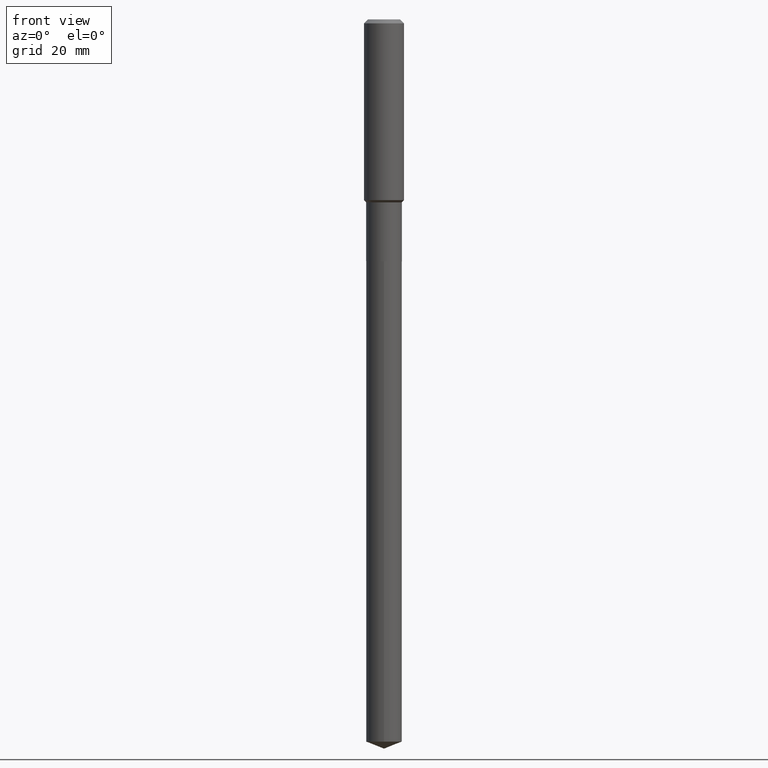
[diagram: clean part render]
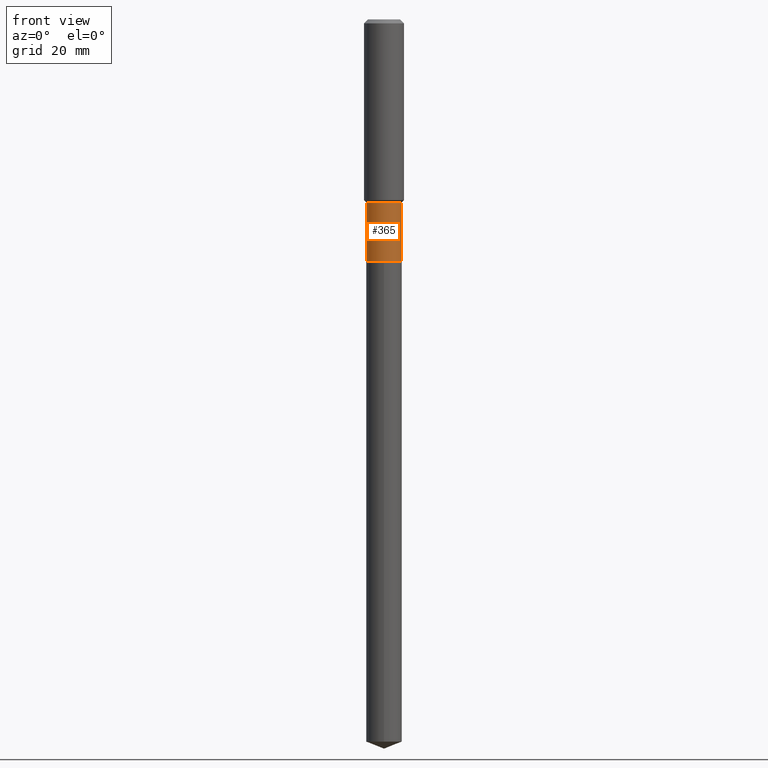
[diagram: same view with one face highlighted and labeled with its STEP entity id]
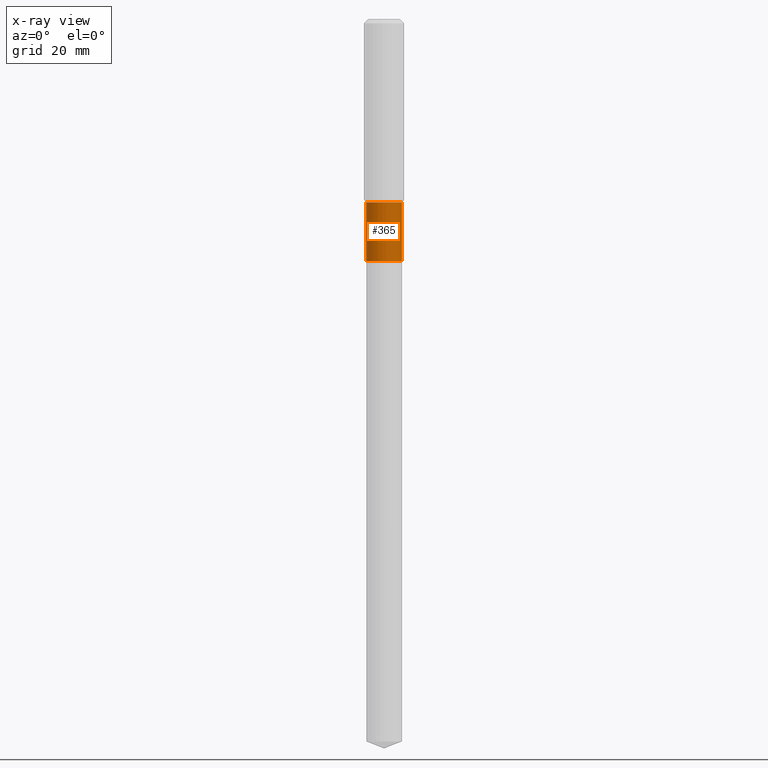
[diagram: x-ray of the same camera — body ghosted, the highlighted face saturated]
A machine part, front view. The second image highlights one B-rep face of the part: STEP entity #365.
The next image is the same camera in x-ray: the body ghosted, the highlighted face saturated — about 0% of this face is hidden behind the body in this view.
In plain terms, the highlighted cylindrical surface (edge-blend (fillet) strip) has radius 4.4501 mm, axis along (-0, 0, 1).
Its self-contained STEP definition (entity closure, byte-faithful):
#11 = CARTESIAN_POINT ( 'NONE',  ( 0.1751999999999999391, -7.499003619567302609E-15, -1.797399999999999887 ) ) ;
#18 = ORIENTED_EDGE ( 'NONE', *, *, #389, .T. ) ;
#47 = VERTEX_POINT ( 'NONE', #469 ) ;
#51 = FACE_OUTER_BOUND ( 'NONE', #420, .T. ) ;
#52 = CARTESIAN_POINT ( 'NONE',  ( 4.395485632237163419E-29, -6.275588558436669520E-15, -1.797399999999999887 ) ) ;
#54 = DIRECTION ( 'NONE',  ( -2.445468806185136597E-29, 3.491481338843145583E-15, 1.000000000000000000 ) ) ;
#113 = VERTEX_POINT ( 'NONE', #11 ) ;
#117 = EDGE_CURVE ( 'NONE', #47, #113, #121, .T. ) ;
#121 = LINE ( 'NONE', #418, #153 ) ;
#130 = VECTOR ( 'NONE', #292, 39.37007874015748143 ) ;
#134 = CARTESIAN_POINT ( 'NONE',  ( -0.1751999999999999391, -6.039232070109816285E-15, -1.797399999999999887 ) ) ;
#136 = CARTESIAN_POINT ( 'NONE',  ( 0.000000000000000000, 0.000000000000000000, 0.000000000000000000 ) ) ;
#139 = AXIS2_PLACEMENT_3D ( 'NONE', #52, #196, #400 ) ;
#153 = VECTOR ( 'NONE', #256, 39.37007874015748143 ) ;
#171 = DIRECTION ( 'NONE',  ( 1.000000000000000000, -6.982962677686266711E-15, 4.876176775795935793E-29 ) ) ;
#184 = LINE ( 'NONE', #327, #130 ) ;
#195 = CIRCLE ( 'NONE', #443, 0.1752000000000000501 ) ;
#196 = DIRECTION ( 'NONE',  ( -2.445468806185136597E-29, 3.491481338843145583E-15, 1.000000000000000000 ) ) ;
#198 = DIRECTION ( 'NONE',  ( -2.445468806185136597E-29, 3.491481338843145583E-15, 1.000000000000000000 ) ) ;
#224 = EDGE_CURVE ( 'NONE', #370, #113, #450, .T. ) ;
#229 = ORIENTED_EDGE ( 'NONE', *, *, #442, .F. ) ;
#237 = DIRECTION ( 'NONE',  ( 1.000000000000000000, -6.982962677686266711E-15, 0.000000000000000000 ) ) ;
#256 = DIRECTION ( 'NONE',  ( -2.445468806185136877E-29, 3.491481338843145188E-15, 1.000000000000000000 ) ) ;
#260 = ORIENTED_EDGE ( 'NONE', *, *, #117, .T. ) ;
#282 = ORIENTED_EDGE ( 'NONE', *, *, #224, .F. ) ;
#292 = DIRECTION ( 'NONE',  ( -2.445468806185136877E-29, 3.491481338843145188E-15, 1.000000000000000000 ) ) ;
#308 = CYLINDRICAL_SURFACE ( 'NONE', #317, 0.1752000000000000224 ) ;
#317 = AXIS2_PLACEMENT_3D ( 'NONE', #136, #54, #171 ) ;
#327 = CARTESIAN_POINT ( 'NONE',  ( -0.1752000000000000224, 1.244870873051695685E-15, -8.617974278126595775E-30 ) ) ;
#365 = ADVANCED_FACE ( 'NONE', ( #51 ), #308, .T. ) ;
#370 = VERTEX_POINT ( 'NONE', #134 ) ;
#386 = VERTEX_POINT ( 'NONE', #439 ) ;
#389 = EDGE_CURVE ( 'NONE', #386, #47, #195, .T. ) ;
#400 = DIRECTION ( 'NONE',  ( 1.000000000000000000, -6.982962677686265133E-15, 0.000000000000000000 ) ) ;
#418 = CARTESIAN_POINT ( 'NONE',  ( 0.1752000000000000224, -1.223415061130634074E-15, 8.543061711194480720E-30 ) ) ;
#420 = EDGE_LOOP ( 'NONE', ( #229, #18, #260, #282 ) ) ;
#432 = CARTESIAN_POINT ( 'NONE',  ( 5.808232961570318202E-29, -8.292617327886355207E-15, -2.375100000000000211 ) ) ;
#439 = CARTESIAN_POINT ( 'NONE',  ( -0.1752000000000000501, -6.039232070109816285E-15, -2.375100000000000211 ) ) ;
#442 = EDGE_CURVE ( 'NONE', #386, #370, #184, .T. ) ;
#443 = AXIS2_PLACEMENT_3D ( 'NONE', #432, #198, #237 ) ;
#450 = CIRCLE ( 'NONE', #139, 0.1751999999999999391 ) ;
#469 = CARTESIAN_POINT ( 'NONE',  ( 0.1752000000000000501, -9.516032389016990662E-15, -2.375100000000000211 ) ) ;